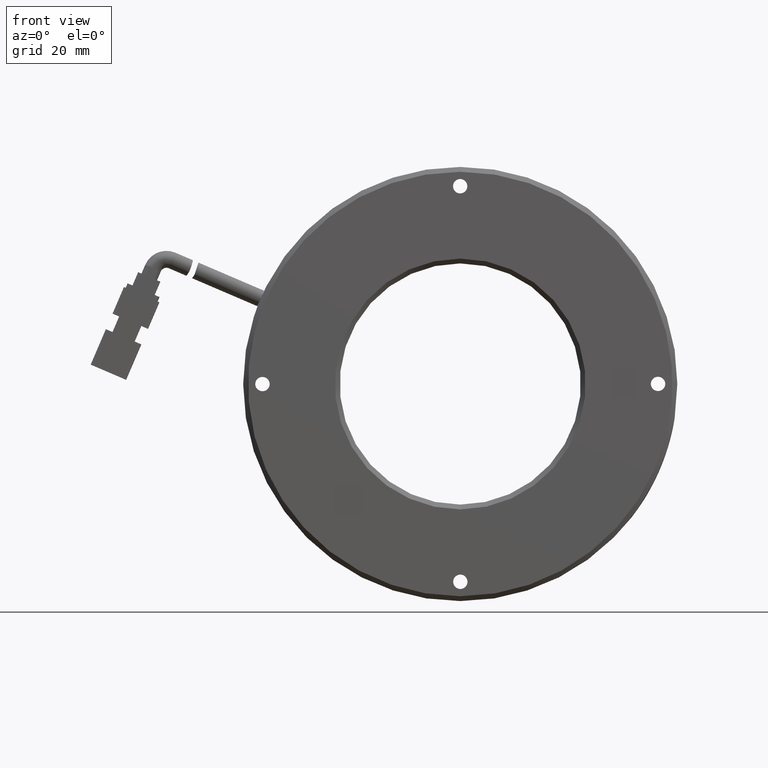
[diagram: clean part render]
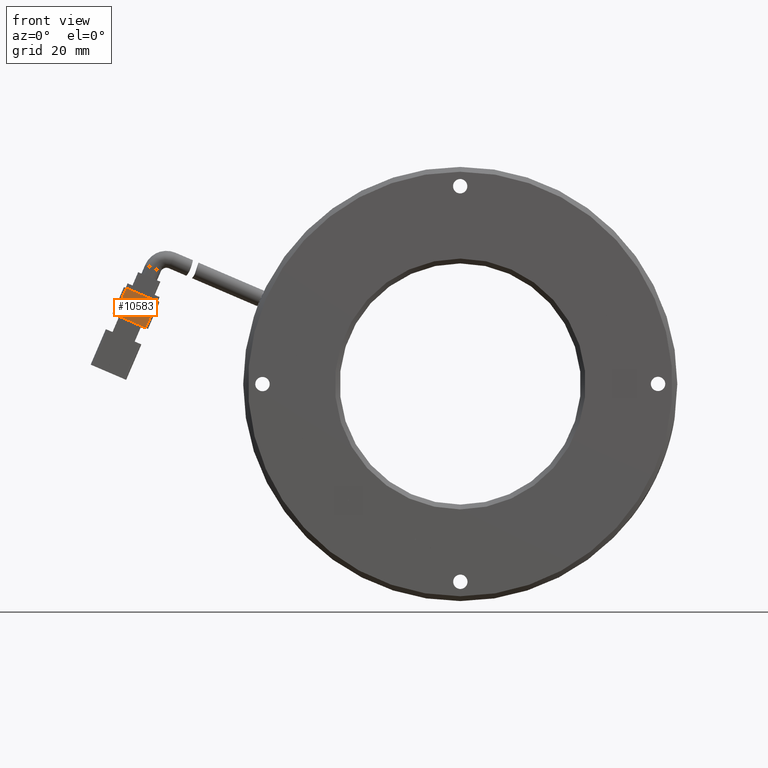
[diagram: same view with one face highlighted and labeled with its STEP entity id]
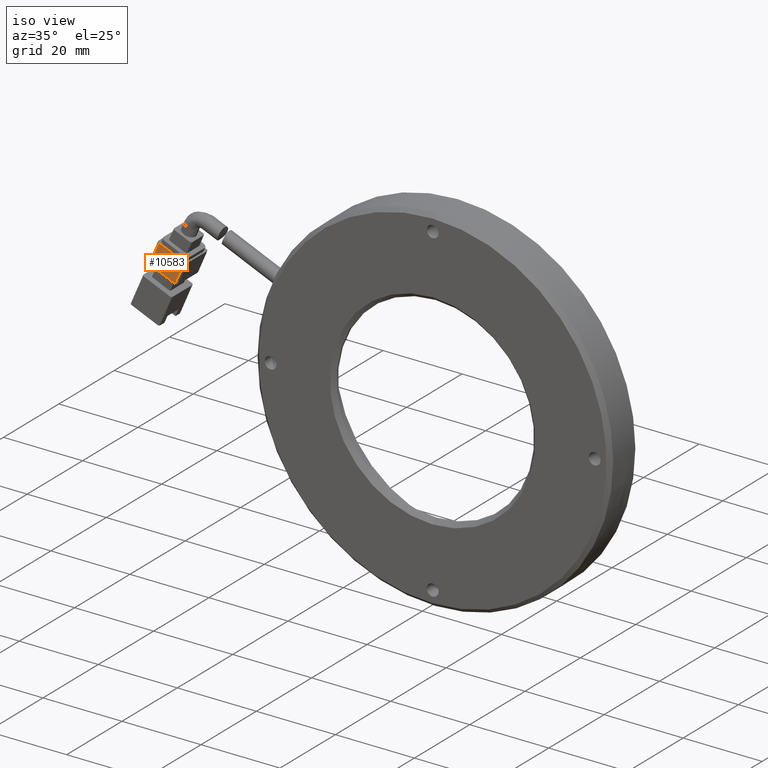
[diagram: same view with one face highlighted and labeled with its STEP entity id]
A machine part, front view. The second image highlights one B-rep face of the part: STEP entity #10583.
A second angle (iso view) of the same face is appended — the face is thin or edge-on in the first view.
In plain terms, the highlighted planar face has unit normal (-0, 1, 0).
Its self-contained STEP definition (entity closure, byte-faithful):
#2 = EDGE_CURVE ( 'NONE', #28291, #28222, #12172, .T. ) ;
#777 = VECTOR ( 'NONE', #33507, 1000.000000000000100 ) ;
#3970 = VECTOR ( 'NONE', #25837, 1000.000000000000100 ) ;
#4008 = CARTESIAN_POINT ( 'NONE',  ( -61.62086086083702700, -1.376447876447876300, 11.62821562320376100 ) ) ;
#4062 = ORIENTED_EDGE ( 'NONE', *, *, #2, .F. ) ;
#4325 = VECTOR ( 'NONE', #32187, 1000.000000000000100 ) ;
#8088 = AXIS2_PLACEMENT_3D ( 'NONE', #34273, #15763, #37373 ) ;
#10583 = ADVANCED_FACE ( 'NONE', ( #25613 ), #18681, .F. ) ;
#12172 = LINE ( 'NONE', #25462, #3970 ) ;
#13343 = VECTOR ( 'NONE', #18195, 1000.000000000000100 ) ;
#13580 = CARTESIAN_POINT ( 'NONE',  ( -59.25670249014351800, -1.376447876447878000, 17.14281036790436700 ) ) ;
#14216 = ORIENTED_EDGE ( 'NONE', *, *, #27995, .F. ) ;
#15009 = CARTESIAN_POINT ( 'NONE',  ( -65.69039635896091100, -1.376447876447878900, 19.90099513371346200 ) ) ;
#15763 = DIRECTION ( 'NONE',  ( -1.773111167964621500E-016, 1.000000000000000000, 2.153438153719941800E-016 ) ) ;
#16781 = CARTESIAN_POINT ( 'NONE',  ( -61.62086086083701300, -1.376447876447875400, 11.62821562320375600 ) ) ;
#17194 = LINE ( 'NONE', #15009, #777 ) ;
#18195 = DIRECTION ( 'NONE',  ( 0.9190991241167711900, 2.478176394252581100E-016, -0.3940263951155860100 ) ) ;
#18681 = PLANE ( 'NONE',  #8088 ) ;
#21548 = LINE ( 'NONE', #36730, #13343 ) ;
#22338 = EDGE_CURVE ( 'NONE', #22362, #24789, #17194, .T. ) ;
#22362 = VERTEX_POINT ( 'NONE', #39734 ) ;
#24789 = VERTEX_POINT ( 'NONE', #39350 ) ;
#25462 = CARTESIAN_POINT ( 'NONE',  ( -59.25670249014352500, -1.376447876447878000, 17.14281036790436000 ) ) ;
#25613 = FACE_OUTER_BOUND ( 'NONE', #39173, .T. ) ;
#25837 = DIRECTION ( 'NONE',  ( -0.3940263951155860100, 1.280570519271349500E-016, -0.9190991241167711900 ) ) ;
#27995 = EDGE_CURVE ( 'NONE', #24789, #28291, #21548, .T. ) ;
#28222 = VERTEX_POINT ( 'NONE', #4008 ) ;
#28291 = VERTEX_POINT ( 'NONE', #13580 ) ;
#28315 = ORIENTED_EDGE ( 'NONE', *, *, #22338, .F. ) ;
#32187 = DIRECTION ( 'NONE',  ( -0.9190991241167713000, -7.511771070445275800E-017, 0.3940263951155858500 ) ) ;
#32271 = ORIENTED_EDGE ( 'NONE', *, *, #39043, .F. ) ;
#33507 = DIRECTION ( 'NONE',  ( 0.3940263951155860100, -1.280570519271349500E-016, 0.9190991241167711900 ) ) ;
#34273 = CARTESIAN_POINT ( 'NONE',  ( -65.69039635896092500, -1.376447876447878900, 19.90099513371346900 ) ) ;
#36730 = CARTESIAN_POINT ( 'NONE',  ( -65.69039635896092500, -1.376447876447878900, 19.90099513371346900 ) ) ;
#37197 = LINE ( 'NONE', #16781, #4325 ) ;
#37373 = DIRECTION ( 'NONE',  ( -0.9190991241167711900, -2.478176394252581100E-016, 0.3940263951155860100 ) ) ;
#39043 = EDGE_CURVE ( 'NONE', #28222, #22362, #37197, .T. ) ;
#39173 = EDGE_LOOP ( 'NONE', ( #4062, #14216, #28315, #32271 ) ) ;
#39350 = CARTESIAN_POINT ( 'NONE',  ( -65.69039635896091100, -1.376447876447878900, 19.90099513371346500 ) ) ;
#39734 = CARTESIAN_POINT ( 'NONE',  ( -68.05455472965442700, -1.376447876447876300, 14.38640038901285400 ) ) ;